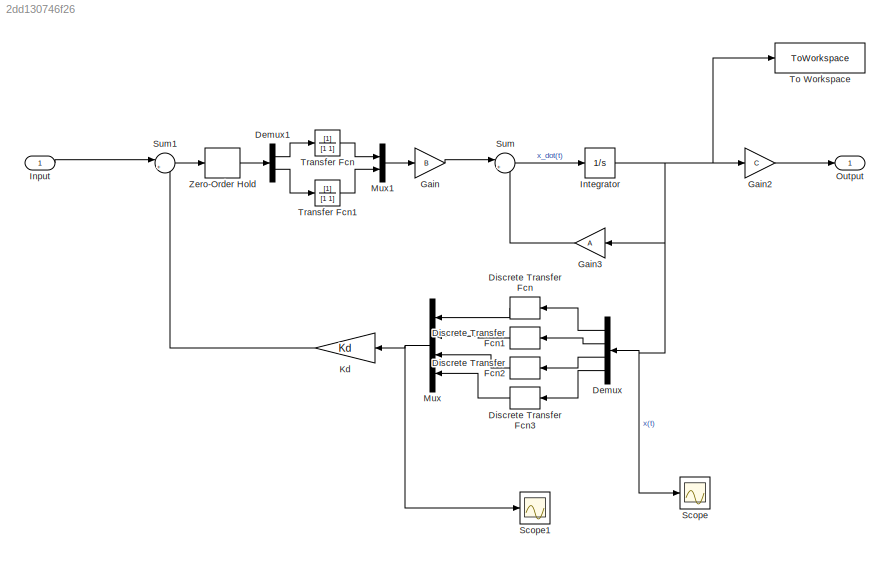
MODEL slx_2dd130746f26
KIND model
CONFIG AbsTol = auto
CONFIG EnableMultiTasking = off
CONFIG FixedStep = Ts
CONFIG MaxStep = auto
CONFIG MinStep = auto
CONFIG RelTol = 1e-3
CONFIG SampleTimeConstraint = Unconstrained
CONFIG SolverName = ode5
CONFIG StartTime = 0.0
CONFIG StopTime = 50
BLOCK [Demux] Demux
  NameLocation = top
  Ports = [1, 4]
BLOCK [Demux] Demux1
  Outputs = 2
  Ports = [1, 2]
BLOCK [DiscreteTransferFcn] Discrete Transfer Fcn
  Denominator = 1
  InputPortMap = u0
  NameLocation = top
  Ports = [1, 1]
  SampleTime = Ts
BLOCK [DiscreteTransferFcn] Discrete Transfer Fcn1
  Denominator = 1
  InputPortMap = u0
  NameLocation = top
  Ports = [1, 1]
  SampleTime = Ts
BLOCK [DiscreteTransferFcn] Discrete Transfer Fcn2
  Denominator = 1
  InputPortMap = u0
  NameLocation = top
  Ports = [1, 1]
  SampleTime = Ts
BLOCK [DiscreteTransferFcn] Discrete Transfer Fcn3
  Denominator = 1
  InputPortMap = u0
  NameLocation = top
  Ports = [1, 1]
  SampleTime = Ts
BLOCK [Gain] Gain
  Gain = B
  Multiplication = Matrix(K*u)
BLOCK [Gain] Gain2
  Gain = C
  Multiplication = Matrix(K*u)
  OutDataTypeStr = Inherit: Same as input
BLOCK [Gain] Gain3
  Gain = A
  Multiplication = Matrix(K*u)
  NameLocation = top
BLOCK [Inport] Input
  PortDimensions = 2
BLOCK [Integrator] Integrator
  Ports = [1, 1]
BLOCK [Gain] Kd
  Gain = Kd
  Multiplication = Matrix(K*u)
  NameLocation = top
  OutDataTypeStr = Inherit: Same as input
  ParamDataTypeStr = Inherit: Same as input
  SampleTime = T
  SaturateOnIntegerOverflow = on
BLOCK [Mux] Mux
  DisplayOption = bar
  NameLocation = top
  Ports = [4, 1]
BLOCK [Mux] Mux1
  DisplayOption = bar
  Inputs = 2
  Ports = [2, 1]
BLOCK [Outport] Output
BLOCK [Scope] Scope
  Floating = off
  NumInputPorts = 1
  Ports = [1]
  ScopeSpecificationString = Simulink.scopes.TimeScopeBlockCfg('CurrentConfiguration', extmgr.ConfigurationSet(extmgr.Configuration('Core','General UI',true),extmgr.Configuration('Core','Source UI',true),extmgr.Configuration('Sources','WiredSimulink',true),extmgr.Configuration('Visuals','Time Domain',true,'SerializedDisplays',{struct('MinYLimReal','-0.02494','MaxYLimReal','0.04179','YLabelReal','','MinYLimMag','0.00000','MaxY...<+1411ch>
BLOCK [Scope] Scope1
  Floating = off
  NumInputPorts = 1
  Ports = [1]
  ScopeSpecificationString = Simulink.scopes.TimeScopeBlockCfg('CurrentConfiguration', extmgr.ConfigurationSet(extmgr.Configuration('Core','General UI',true),extmgr.Configuration('Core','Source UI',true),extmgr.Configuration('Sources','WiredSimulink',true,'DataLoggingVariableName','ScopeData1'),extmgr.Configuration('Visuals','Time Domain',true,'SerializedDisplays',{struct('MinYLimReal','-0.02494','MaxYLimReal','0.04179','YLab...<+1486ch>
BLOCK [Sum] Sum
  Inputs = |++
  Ports = [2, 1]
BLOCK [Sum] Sum1
  Inputs = |+-
  Ports = [2, 1]
  SaturateOnIntegerOverflow = on
BLOCK [ToWorkspace] To Workspace
  FixptAsFi = on
  MaxDataPoints = inf
  Ports = [1]
  SampleTime = -1
  VariableName = simout
BLOCK [TransferFcn] Transfer Fcn
  Denominator = [1 1]
BLOCK [TransferFcn] Transfer Fcn1
  Denominator = [1 1]
BLOCK [ZeroOrderHold] Zero-Order Hold
  SampleTime = Ts
LINE Demux1:1 -> Transfer Fcn:1
LINE Demux1:2 -> Transfer Fcn1:1
LINE Demux:1 -> Discrete Transfer Fcn:1
LINE Demux:2 -> Discrete Transfer Fcn1:1
LINE Demux:3 -> Discrete Transfer Fcn2:1
LINE Demux:4 -> Discrete Transfer Fcn3:1
LINE Discrete Transfer Fcn1:1 -> Mux:2
LINE Discrete Transfer Fcn2:1 -> Mux:3
LINE Discrete Transfer Fcn3:1 -> Mux:4
LINE Discrete Transfer Fcn:1 -> Mux:1
LINE Gain2:1 -> Output:1
LINE Gain3:1 -> Sum:2
LINE Gain:1 -> Sum:1
LINE Input:1 -> Sum1:1
NET Integrator:1 -> Demux:1, Gain2:1, Gain3:1, Scope:1, To Workspace:1
LINE Kd:1 -> Sum1:2
LINE Mux1:1 -> Gain:1
NET Mux:1 -> Kd:1, Scope1:1
LINE Sum1:1 -> Zero-Order Hold:1
LINE Sum:1 -> Integrator:1
LINE Transfer Fcn1:1 -> Mux1:2
LINE Transfer Fcn:1 -> Mux1:1
LINE Zero-Order Hold:1 -> Demux1:1
note: NET lines group one-source signal fan-out (src -> all destinations, sorted); 1:1 wires keep LINE
